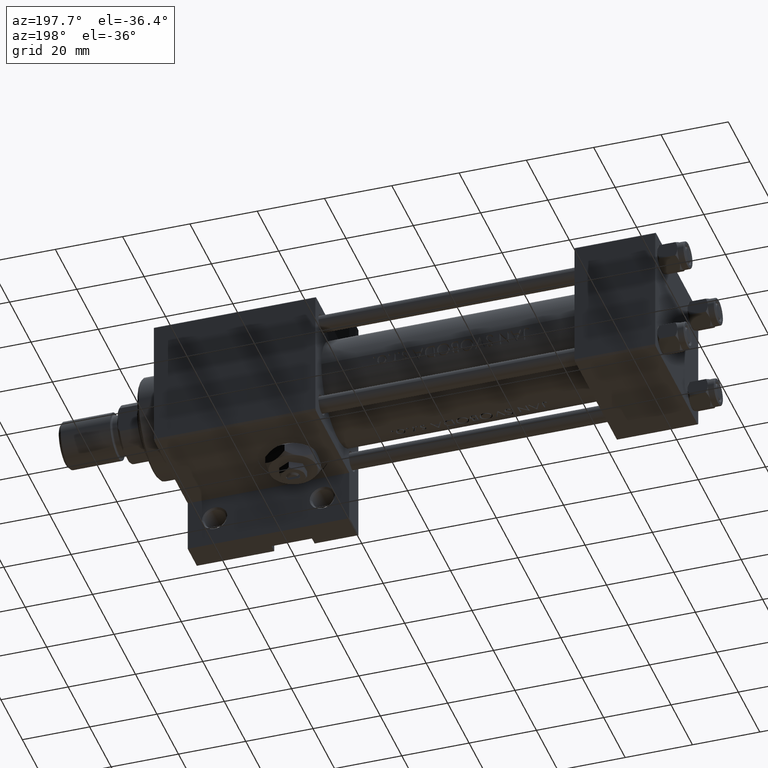
[diagram: clean part render]
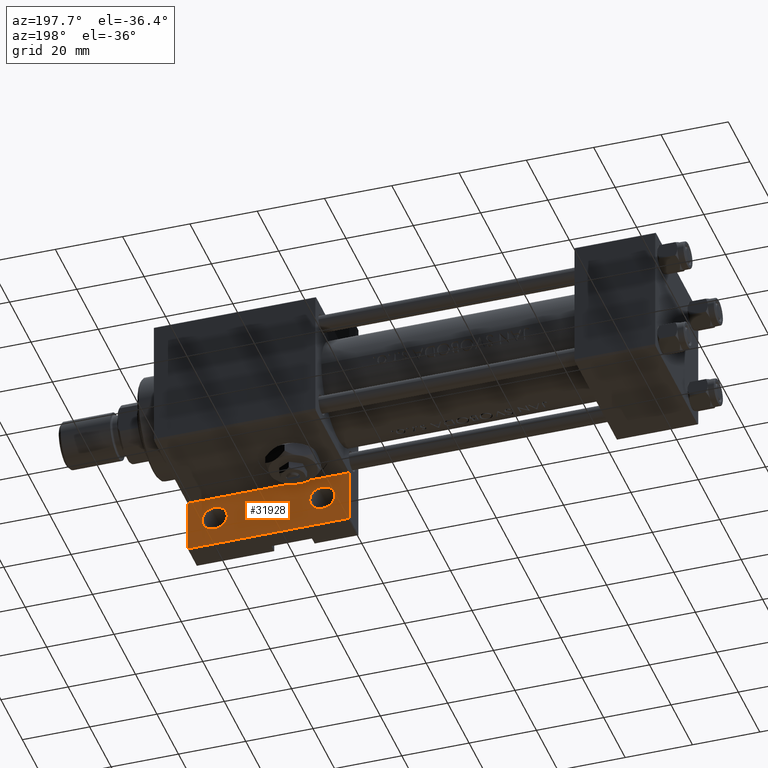
[diagram: same view with one face highlighted and labeled with its STEP entity id]
A machine part, auxiliary view. The second image highlights one B-rep face of the part: STEP entity #31928.
In plain terms, the highlighted planar face has unit normal (0, 1, 0).
Its self-contained STEP definition (entity closure, byte-faithful):
#597 = EDGE_CURVE ( 'NONE', #21474, #39377, #20580, .T. ) ;
#1097 = CARTESIAN_POINT ( 'NONE',  ( 105.2500500000000017, 27.00000000000000000, -11.50000000000000000 ) ) ;
#2048 = EDGE_LOOP ( 'NONE', ( #44571, #4806, #41738, #30205 ) ) ;
#2308 = VECTOR ( 'NONE', #34578, 1000.000000000000000 ) ;
#2866 = AXIS2_PLACEMENT_3D ( 'NONE', #32677, #9763, #28901 ) ;
#4040 = DIRECTION ( 'NONE',  ( 0.000000000000000000, 0.000000000000000000, 1.000000000000000000 ) ) ;
#4806 = ORIENTED_EDGE ( 'NONE', *, *, #15966, .F. ) ;
#6017 = DIRECTION ( 'NONE',  ( -0.000000000000000000, -0.000000000000000000, -1.000000000000000000 ) ) ;
#6378 = VECTOR ( 'NONE', #45334, 1000.000000000000000 ) ;
#6624 = CIRCLE ( 'NONE', #7419, 3.749950000000015660 ) ;
#7419 = AXIS2_PLACEMENT_3D ( 'NONE', #36018, #40035, #9587 ) ;
#8460 = AXIS2_PLACEMENT_3D ( 'NONE', #42288, #4040, #19409 ) ;
#9437 = DIRECTION ( 'NONE',  ( -0.000000000000000000, 1.000000000000000000, -0.000000000000000000 ) ) ;
#9547 = EDGE_CURVE ( 'NONE', #42055, #11802, #6624, .T. ) ;
#9587 = DIRECTION ( 'NONE',  ( 1.000000000000000000, 0.000000000000000000, 0.000000000000000000 ) ) ;
#9763 = DIRECTION ( 'NONE',  ( -0.000000000000000000, -0.000000000000000000, -1.000000000000000000 ) ) ;
#10082 = CIRCLE ( 'NONE', #17312, 3.749950000000015660 ) ;
#11583 = FACE_BOUND ( 'NONE', #35698, .T. ) ;
#11802 = VERTEX_POINT ( 'NONE', #29662 ) ;
#12225 = CARTESIAN_POINT ( 'NONE',  ( 101.0000000000000000, 35.99999999999998579, -11.50000000000000000 ) ) ;
#12325 = EDGE_CURVE ( 'NONE', #39719, #32480, #32086, .T. ) ;
#13404 = CARTESIAN_POINT ( 'NONE',  ( 148.9999999999999716, 35.99999999999999289, -11.50000000000000000 ) ) ;
#13784 = CARTESIAN_POINT ( 'NONE',  ( 144.7499500000000126, 27.00000000000000000, -11.50000000000000000 ) ) ;
#13941 = CARTESIAN_POINT ( 'NONE',  ( 109.0000000000000142, 27.00000000000000000, -11.50000000000000000 ) ) ;
#13974 = VECTOR ( 'NONE', #17930, 1000.000000000000000 ) ;
#14389 = CARTESIAN_POINT ( 'NONE',  ( 101.0000000000000000, 19.99999999999999645, -11.50000000000000000 ) ) ;
#15966 = EDGE_CURVE ( 'NONE', #32999, #39719, #40819, .T. ) ;
#16012 = CARTESIAN_POINT ( 'NONE',  ( 148.9999999999999716, 35.99999999999999289, -11.50000000000000000 ) ) ;
#17312 = AXIS2_PLACEMENT_3D ( 'NONE', #13941, #45379, #21736 ) ;
#17930 = DIRECTION ( 'NONE',  ( -1.000000000000000000, 1.445602896647340396E-16, -0.000000000000000000 ) ) ;
#19409 = DIRECTION ( 'NONE',  ( 1.000000000000000000, 0.000000000000000000, -0.000000000000000000 ) ) ;
#19660 = PLANE ( 'NONE',  #8460 ) ;
#20012 = CARTESIAN_POINT ( 'NONE',  ( 137.2500500000000159, 27.00000000000000000, -11.50000000000000000 ) ) ;
#20580 = CIRCLE ( 'NONE', #2866, 3.749950000000001893 ) ;
#21425 = CARTESIAN_POINT ( 'NONE',  ( 101.0000000000000000, 19.99999999999999645, -11.50000000000000000 ) ) ;
#21474 = VERTEX_POINT ( 'NONE', #13784 ) ;
#21736 = DIRECTION ( 'NONE',  ( 1.000000000000000000, 0.000000000000000000, 0.000000000000000000 ) ) ;
#21915 = EDGE_LOOP ( 'NONE', ( #40785, #35509 ) ) ;
#28434 = AXIS2_PLACEMENT_3D ( 'NONE', #29170, #6017, #48505 ) ;
#28568 = CARTESIAN_POINT ( 'NONE',  ( 101.0000000000000000, 35.99999999999998579, -11.50000000000000000 ) ) ;
#28901 = DIRECTION ( 'NONE',  ( 1.000000000000000000, 0.000000000000000000, 0.000000000000000000 ) ) ;
#29170 = CARTESIAN_POINT ( 'NONE',  ( 141.0000000000000000, 27.00000000000000000, -11.50000000000000000 ) ) ;
#29617 = EDGE_CURVE ( 'NONE', #39377, #21474, #39712, .T. ) ;
#29662 = CARTESIAN_POINT ( 'NONE',  ( 112.7499500000000268, 27.00000000000000000, -11.50000000000000000 ) ) ;
#30205 = ORIENTED_EDGE ( 'NONE', *, *, #44635, .F. ) ;
#30732 = FACE_BOUND ( 'NONE', #21915, .T. ) ;
#31928 = ADVANCED_FACE ( 'NONE', ( #30732, #11583, #38515 ), #19660, .T. ) ;
#32086 = LINE ( 'NONE', #28568, #49190 ) ;
#32480 = VERTEX_POINT ( 'NONE', #12225 ) ;
#32677 = CARTESIAN_POINT ( 'NONE',  ( 141.0000000000000000, 27.00000000000000000, -11.50000000000000000 ) ) ;
#32999 = VERTEX_POINT ( 'NONE', #46768 ) ;
#33415 = VERTEX_POINT ( 'NONE', #16012 ) ;
#34578 = DIRECTION ( 'NONE',  ( 1.000000000000000000, 1.445602896647340396E-16, 0.000000000000000000 ) ) ;
#34828 = LINE ( 'NONE', #46136, #2308 ) ;
#35509 = ORIENTED_EDGE ( 'NONE', *, *, #29617, .T. ) ;
#35698 = EDGE_LOOP ( 'NONE', ( #46368, #44536 ) ) ;
#36018 = CARTESIAN_POINT ( 'NONE',  ( 109.0000000000000142, 27.00000000000000000, -11.50000000000000000 ) ) ;
#36377 = EDGE_CURVE ( 'NONE', #11802, #42055, #10082, .T. ) ;
#38515 = FACE_OUTER_BOUND ( 'NONE', #2048, .T. ) ;
#39377 = VERTEX_POINT ( 'NONE', #20012 ) ;
#39712 = CIRCLE ( 'NONE', #28434, 3.749950000000001893 ) ;
#39719 = VERTEX_POINT ( 'NONE', #21425 ) ;
#39841 = LINE ( 'NONE', #13404, #6378 ) ;
#40035 = DIRECTION ( 'NONE',  ( -0.000000000000000000, -0.000000000000000000, -1.000000000000000000 ) ) ;
#40785 = ORIENTED_EDGE ( 'NONE', *, *, #597, .T. ) ;
#40819 = LINE ( 'NONE', #14389, #13974 ) ;
#41738 = ORIENTED_EDGE ( 'NONE', *, *, #45683, .F. ) ;
#42055 = VERTEX_POINT ( 'NONE', #1097 ) ;
#42288 = CARTESIAN_POINT ( 'NONE',  ( 0.000000000000000000, 0.000000000000000000, -11.50000000000000000 ) ) ;
#44536 = ORIENTED_EDGE ( 'NONE', *, *, #9547, .T. ) ;
#44571 = ORIENTED_EDGE ( 'NONE', *, *, #12325, .F. ) ;
#44635 = EDGE_CURVE ( 'NONE', #32480, #33415, #34828, .T. ) ;
#45334 = DIRECTION ( 'NONE',  ( 0.000000000000000000, -1.000000000000000000, 0.000000000000000000 ) ) ;
#45379 = DIRECTION ( 'NONE',  ( -0.000000000000000000, -0.000000000000000000, -1.000000000000000000 ) ) ;
#45683 = EDGE_CURVE ( 'NONE', #33415, #32999, #39841, .T. ) ;
#46136 = CARTESIAN_POINT ( 'NONE',  ( 101.0000000000000000, 35.99999999999998579, -11.50000000000000000 ) ) ;
#46368 = ORIENTED_EDGE ( 'NONE', *, *, #36377, .T. ) ;
#46768 = CARTESIAN_POINT ( 'NONE',  ( 148.9999999999999716, 19.99999999999998934, -11.50000000000000000 ) ) ;
#48505 = DIRECTION ( 'NONE',  ( 1.000000000000000000, 0.000000000000000000, 0.000000000000000000 ) ) ;
#49190 = VECTOR ( 'NONE', #9437, 1000.000000000000000 ) ;